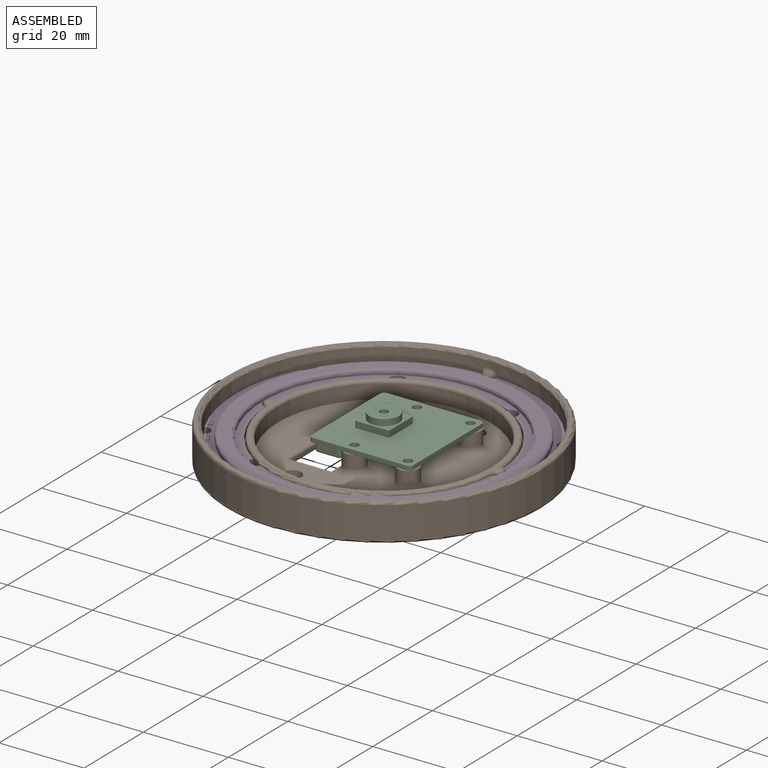
[diagram: assembled view]
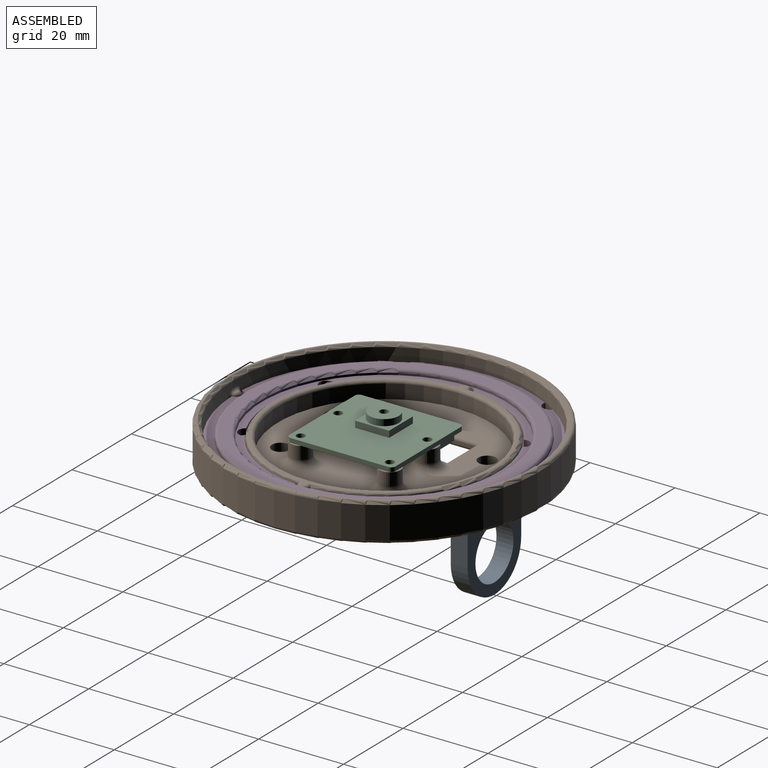
[diagram: assembled view, second angle]
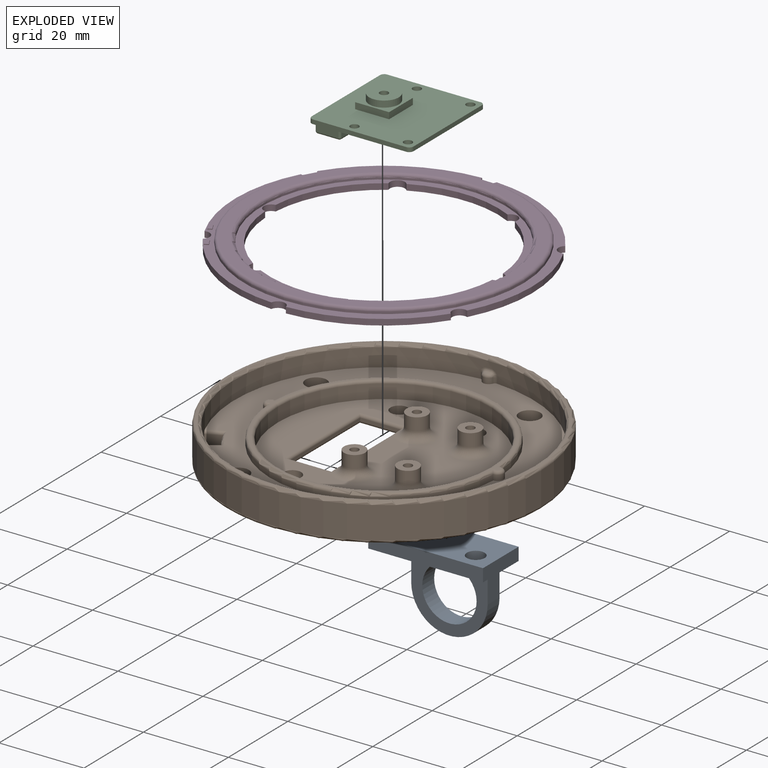
[diagram: exploded view]
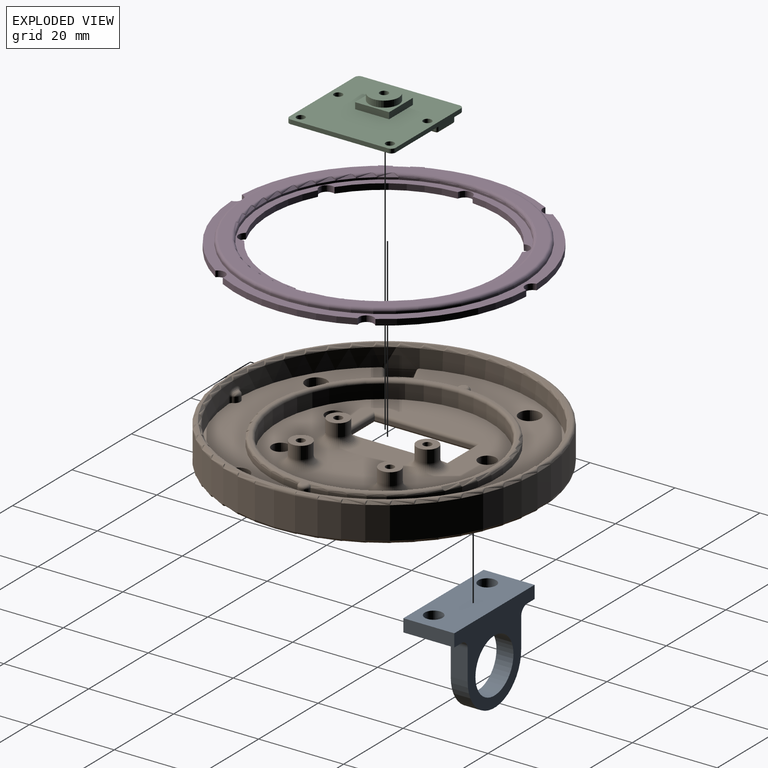
[diagram: exploded view, second angle]
ASSEMBLY  parts=4 mates=8
PART A: 16 faces, bbox 27x21x12 mm
  f0: plane 12x3.02mm, normal (1,0,0), area 36.2mm2, adj f1,f6,f8,f10
  f1: plane 27x12mm, normal (0,1,0), area 296.3mm2, adj f0,f2,f8,f10,f11,f12
  f2: plane 12x3.02mm, normal (-1,0,0), area 36.2mm2, adj f1,f6,f8,f10
  f3: plane 7x4mm, normal (-1,0,0), area 28mm2, adj f4,f8,f9,f13
  f4: cylinder r=9mm len=18mm, axis (0,0,-1), area 113.1mm2, adj f3,f5,f8,f9
  f5: plane 7x4mm, normal (1,0,0), area 28mm2, adj f4,f8,f9,f14
  f6: plane 27x12mm, normal (0,-1,0), area 164.5mm2, adj f0,f2,f8,f10,f11,f12,f13,f14
  f7: cylinder r=6.4mm len=12.8mm, axis (0,0,-1), area 160.8mm2, adj f8,f9
  f8: plane 27x21.02mm, normal (0,0,1), area 243.8mm2, adj f0,f1,f2,f3,f4,f5,f6,f7
  f9: plane 18x16mm, normal (0,0,-1), area 124.6mm2, adj f3,f4,f5,f7,f15
  f10: plane 27x3.02mm, normal (0,0,-1), area 81.5mm2, adj f0,f1,f2,f6
  f11: cylinder r=2.1mm len=4.2mm, axis (0,-1,0), area 39.8mm2, adj f1,f6,f15
  f12: cylinder r=2.1mm len=4.2mm, axis (0,-1,0), area 39.8mm2, adj f1,f6,f15
  f13: cylinder r=2mm len=6mm, axis (0,0,1), area 14.8mm2, adj f3,f6,f8,f15
  f14: cylinder r=2mm len=6mm, axis (0,0,-1), area 14.8mm2, adj f5,f6,f8,f15
  f15: cylinder r=2mm len=22mm, axis (1,0,0), area 60.9mm2, adj f6,f9,f11,f12,f13,f14
PART B: 90 faces, bbox 80.1x80.1x9 mm
  f0: plane 52.1x52.1mm, normal (0,0,1), area 56.9mm2, adj f71,f74,f86
  f1: plane 1.4x1.4mm, normal (0,0,1), area 1.5mm2, adj f73
  f2: plane 70.5x70.39mm, normal (0,0,1), area 1532.8mm2, adj f3,f4,f8,f45,f46,f47,f48,f49
  f3: cylinder r=26.75mm len=53.43mm, axis (0,0,-1), area 105.6mm2, adj f2,f45,f46,f71
  f4: cylinder r=26.75mm len=53.43mm, axis (0,0,-1), area 105.6mm2, adj f2,f45,f46,f74
  f5: plane 50x50mm, normal (0,0,1), area 1369.6mm2, adj f10,f19,f20,f21,f22,f39,f41,f42
  f6: plane 72.6x72.6mm, normal (0,0,-1), area 3679.1mm2, adj f19,f20,f21,f22,f49,f50,f51,f52
  f7: cylinder r=37mm len=74mm, axis (0,0,1), area 1766.8mm2, adj f88,f89
  f8: cylinder r=35.25mm len=70.5mm, axis (0,0,-1), area 953.3mm2, adj f2,f13,f14,f53,f54,f56,f57,f58
  f9: plane 72.6x72.6mm, normal (0,0,1), area 79.4mm2, adj f87,f88
  f10: cylinder r=25mm len=50mm, axis (0,0,-1), area 518.4mm2, adj f5,f86
  f11: plane 1.4x1.4mm, normal (0,0,1), area 1.5mm2, adj f72
  f12: cylinder r=31.5mm len=4.73mm, axis (0,0,1), area 14.2mm2, adj f13,f14,f76,f85
  f13: plane 3.4x2.6mm, normal (0.42,-0.91,0), area 9.8mm2, adj f8,f12,f75,f83
  f14: plane 3.08x2.6mm, normal (-0.57,0.82,0), area 9.8mm2, adj f8,f12,f77,f84
  f15: plane 10x0.6mm, normal (0,-1,0), area 6mm2, adj f16,f18,f63,f81
  f16: plane 24x0.6mm, normal (1,0,0), area 14.4mm2, adj f15,f17,f65,f79
  f17: plane 10x0.6mm, normal (0,1,0), area 6mm2, adj f16,f18,f67,f78
  f18: plane 24x0.72mm, normal (-1,0,0), area 15mm2, adj f15,f17,f61,f62,f63,f64,f66,f67
  f19: cylinder r=2.1mm len=4.2mm, axis (0,0,1), area 26.4mm2, adj f5,f6
  f20: cylinder r=2.1mm len=4.2mm, axis (0,0,1), area 26.4mm2, adj f5,f6
  f21: cylinder r=2.1mm len=4.2mm, axis (0,0,1), area 26.4mm2, adj f5,f6
  f22: cylinder r=2.1mm len=4.2mm, axis (0,0,1), area 26.4mm2, adj f5,f6
  f23: cylinder r=1mm len=5mm, axis (0,0,-1), area 31.4mm2, adj f25,f26
  f24: cylinder r=2.5mm len=5mm, axis (0,0,-1), area 47.1mm2, adj f25,f42
  f25: plane 5x5mm, normal (0,0,1), area 16.5mm2, adj f23,f24
  f26: plane 2x2mm, normal (0,0,1), area 3.1mm2, adj f23
  f27: cylinder r=1mm len=5mm, axis (0,0,-1), area 31.4mm2, adj f29,f30
  f28: cylinder r=2.5mm len=5mm, axis (0,0,-1), area 47.1mm2, adj f29,f43,f44
  f29: plane 5x5mm, normal (0,0,1), area 16.5mm2, adj f27,f28
  f30: plane 2x2mm, normal (0,0,1), area 3.1mm2, adj f27
  f31: cylinder r=1mm len=5mm, axis (0,0,-1), area 31.4mm2, adj f33,f34
  f32: cylinder r=2.5mm len=5mm, axis (0,0,-1), area 47.1mm2, adj f33,f41
  f33: plane 5x5mm, normal (0,0,1), area 16.5mm2, adj f31,f32
  f34: plane 2x2mm, normal (0,0,1), area 3.1mm2, adj f31
  f35: cylinder r=1mm len=5mm, axis (0,0,-1), area 31.4mm2, adj f37,f38
  f36: cylinder r=2.5mm len=5mm, axis (0,0,-1), area 47.1mm2, adj f37,f39,f40
  f37: plane 5x5mm, normal (0,0,1), area 16.5mm2, adj f35,f36
  f38: plane 2x2mm, normal (0,0,1), area 3.1mm2, adj f35
  f39: torus R=4.5mm, axis (0,0,1), area 58.5mm2, adj f5,f36,f40,f68,f69
  f40: bspline ~2.83x2.21mm, area 3.2mm2, adj f36,f39,f70
  f41: torus R=4.5mm, axis (0,0,1), area 63.7mm2, adj f5,f32
  f42: torus R=4.5mm, axis (0,0,1), area 63.7mm2, adj f5,f24
  f43: torus R=4.5mm, axis (0,0,1), area 58.5mm2, adj f5,f28,f44,f61,f64
  f44: bspline ~2.83x2.21mm, area 3.2mm2, adj f28,f43,f62
  f45: cylinder r=1.4mm len=2.8mm, axis (0,0,-1), area 5.8mm2, adj f2,f3,f4,f73
  f46: cylinder r=1.4mm len=2.8mm, axis (0,0,-1), area 5.8mm2, adj f2,f3,f4,f72
  f47: cylinder r=1.4mm len=2.61mm, axis (0,0,-1), area 4.4mm2, adj f2,f53,f55,f56
  f48: cylinder r=1.4mm len=2.61mm, axis (0,0,-1), area 4.4mm2, adj f2,f57,f59,f60
  f49: cylinder r=2.5mm len=5mm, axis (0,0,1), area 62.8mm2, adj f2,f6
  f50: cylinder r=2.5mm len=5mm, axis (0,0,1), area 62.8mm2, adj f2,f6
  f51: cylinder r=2.5mm len=5mm, axis (0,0,1), area 62.8mm2, adj f2,f6
  f52: cylinder r=2.5mm len=5mm, axis (0,0,1), area 62.8mm2, adj f2,f6
  f53: cylinder r=0.7mm len=1.3mm, axis (0,0,-1), area 1.1mm2, adj f2,f8,f47,f54
  f54: bspline ~4x1.7mm, area 4.1mm2, adj f8,f53,f55,f56
  f55: torus R=0.7mm, axis (0,0,1), area 1.7mm2, adj f47,f54
  f56: cylinder r=0.7mm len=1.3mm, axis (0,0,-1), area 1.1mm2, adj f2,f8,f47,f54
  f57: cylinder r=0.7mm len=1.3mm, axis (0,0,-1), area 1.1mm2, adj f2,f8,f48,f58
  f58: bspline ~4x1.7mm, area 4.1mm2, adj f8,f57,f59,f60
  f59: torus R=0.7mm, axis (0,0,1), area 1.7mm2, adj f48,f58
  f60: cylinder r=0.7mm len=1.3mm, axis (0,0,-1), area 1.1mm2, adj f2,f8,f48,f58
  f61: bspline ~2.77x0.79mm, area 1mm2, adj f5,f18,f43,f62,f63
  f62: bspline ~2.62x0.73mm, area 1.5mm2, adj f18,f44,f61,f64
  f63: cylinder r=0.7mm len=11.3mm, axis (1,0,0), area 11.5mm2, adj f5,f15,f18,f61,f65
  f64: bspline ~2.59x0.79mm, area 1.7mm2, adj f18,f43,f62,f66
  f65: cylinder r=0.7mm len=25.4mm, axis (0,1,0), area 27.2mm2, adj f5,f16,f63,f67
  f66: cylinder r=0.7mm len=15.88mm, axis (0,-1,0), area 17.5mm2, adj f5,f18,f64,f68
  f67: cylinder r=0.7mm len=11.3mm, axis (-1,0,0), area 11.5mm2, adj f5,f17,f18,f65,f69
  f68: bspline ~3.49x0.91mm, area 1.7mm2, adj f18,f39,f66,f70
  f69: bspline ~2.77x0.79mm, area 1mm2, adj f5,f18,f39,f67,f70
  f70: bspline ~2.62x0.73mm, area 1.5mm2, adj f18,f40,f68,f69
  f71: torus R=26.05mm, axis (0,0,1), area 90mm2, adj f0,f3,f72,f73
  f72: torus R=0.7mm, axis (0,0,1), area 5.8mm2, adj f11,f46,f71,f74
  f73: torus R=0.7mm, axis (0,0,1), area 5.8mm2, adj f1,f45,f71,f74
  f74: torus R=26.05mm, axis (0,0,1), area 90mm2, adj f0,f4,f72,f73
  f75: cylinder r=0.7mm len=4.34mm, axis (0.91,0.42,0), area 4.5mm2, adj f2,f8,f13,f76
  f76: torus R=30.8mm, axis (0,0,1), area 6.7mm2, adj f2,f12,f75,f77
  f77: cylinder r=0.7mm len=4.06mm, axis (-0.82,-0.57,0), area 4.5mm2, adj f2,f8,f14,f76
  f78: cylinder r=0.7mm len=11.4mm, axis (1,0,0), area 11.8mm2, adj f6,f17,f79,f80
  f79: cylinder r=0.7mm len=25.4mm, axis (0,-1,0), area 27.2mm2, adj f6,f16,f78,f81
  f80: cylinder r=0.7mm len=25.4mm, axis (0,1,0), area 27.2mm2, adj f6,f18,f78,f81
  f81: cylinder r=0.7mm len=11.4mm, axis (-1,0,0), area 11.8mm2, adj f6,f15,f79,f80
  f82: torus R=35.95mm, axis (0,0,1), area 7.5mm2, adj f6,f8,f83,f84
  f83: cylinder r=0.7mm len=4.97mm, axis (-0.91,-0.42,0), area 4.9mm2, adj f6,f13,f82,f85
  f84: cylinder r=0.7mm len=4.63mm, axis (0.82,0.57,0), area 4.9mm2, adj f6,f14,f82,f85
  f85: torus R=30.8mm, axis (0,0,1), area 6.7mm2, adj f6,f12,f83,f84
  f86: torus R=25.7mm, axis (0,0,1), area 174.5mm2, adj f0,f10
  f87: torus R=35.95mm, axis (0,0,1), area 245.3mm2, adj f8,f9
  f88: torus R=36.3mm, axis (0,0,1), area 253.9mm2, adj f7,f9
  f89: torus R=36.3mm, axis (0,0,1), area 253.9mm2, adj f6,f7
PART C: 48 faces, bbox 24x25x7 mm
  f0: cylinder r=1mm len=2mm, axis (0,0,-1), area 9.4mm2, adj f2,f47
  f1: cylinder r=3.5mm len=7mm, axis (0,0,-1), area 33mm2, adj f2,f3
  f2: plane 7x7mm, normal (0,0,1), area 35.3mm2, adj f0,f1
  f3: plane 8x8mm, normal (0,0,1), area 25.5mm2, adj f1,f4,f5,f6,f7
  f4: plane 8x1.5mm, normal (1,0,0), area 12mm2, adj f3,f5,f7,f20
  f5: plane 8x1.5mm, normal (0,-1,0), area 12mm2, adj f3,f4,f6,f20
  f6: plane 8x1.5mm, normal (-1,0,0), area 12mm2, adj f3,f5,f7,f20
  f7: plane 8x1.5mm, normal (0,1,0), area 12mm2, adj f3,f4,f6,f20
  f8: cylinder r=1mm len=1mm, axis (0,0,-1), area 1.6mm2, adj f12,f19,f20,f21
  f9: cylinder r=1mm len=1mm, axis (0,0,1), area 1.6mm2, adj f12,f17,f20,f21
  f10: cylinder r=1mm len=1mm, axis (0,0,-1), area 1.6mm2, adj f17,f18,f20,f21
  f11: cylinder r=1mm len=1mm, axis (0,0,1), area 1.6mm2, adj f18,f19,f20,f21
  f12: plane 23x1mm, normal (-1,0,0), area 23mm2, adj f8,f9,f20,f21
  f13: cylinder r=1mm len=2mm, axis (0,0,-1), area 6.3mm2, adj f20,f21
  f14: cylinder r=1mm len=2mm, axis (0,0,-1), area 6.3mm2, adj f20,f21
  f15: cylinder r=1mm len=2mm, axis (0,0,-1), area 6.3mm2, adj f20,f21
  f16: cylinder r=1mm len=2mm, axis (0,0,-1), area 6.3mm2, adj f20,f21
  f17: plane 22x1mm, normal (0,1,0), area 22mm2, adj f9,f10,f20,f21
  f18: plane 23x1mm, normal (1,0,0), area 23mm2, adj f10,f11,f20,f21
  f19: plane 22x1mm, normal (0,-1,0), area 22mm2, adj f8,f11,f20,f21
  f20: plane 25x24mm, normal (0,0,1), area 522.6mm2, adj f4,f5,f6,f7,f8,f9,f10,f11
  f21: plane 25x24mm, normal (0,0,-1), area 486.6mm2, adj f8,f9,f10,f11,f12,f13,f14,f15
  f22: cylinder r=0.5mm len=2mm, axis (0,0,-1), area 1.6mm2, adj f23,f24,f45,f46
  f23: sphere r=0.5mm, area 0.4mm2, adj f22,f25,f26
  f24: sphere r=0.5mm, area 0.4mm2, adj f22,f27,f28
  f25: cylinder r=0.5mm len=5mm, axis (-1,0,0), area 3.9mm2, adj f21,f23,f29,f46
  f26: cylinder r=0.5mm len=20mm, axis (0,1,0), area 15.7mm2, adj f21,f23,f30,f45
  f27: cylinder r=0.5mm len=20mm, axis (0,-1,0), area 15.7mm2, adj f24,f31,f42,f45
  f28: cylinder r=0.5mm len=5mm, axis (1,0,0), area 3.9mm2, adj f24,f32,f42,f46
  f29: sphere r=0.5mm, area 0.4mm2, adj f25,f33,f34
  f30: sphere r=0.5mm, area 0.4mm2, adj f26,f35,f36
  f31: sphere r=0.5mm, area 0.4mm2, adj f27,f36,f37
  f32: sphere r=0.5mm, area 0.4mm2, adj f28,f33,f38
  f33: cylinder r=0.5mm len=2mm, axis (0,0,1), area 1.6mm2, adj f29,f32,f43,f46
  f34: cylinder r=0.5mm len=20mm, axis (0,-1,0), area 15.7mm2, adj f21,f29,f39,f43
  f35: cylinder r=0.5mm len=5mm, axis (1,0,0), area 3.9mm2, adj f21,f30,f39,f44
  f36: cylinder r=0.5mm len=2mm, axis (0,0,1), area 1.6mm2, adj f30,f31,f44,f45
  f37: cylinder r=0.5mm len=5mm, axis (-1,0,0), area 3.9mm2, adj f31,f40,f42,f44
  f38: cylinder r=0.5mm len=20mm, axis (0,1,0), area 15.7mm2, adj f32,f40,f42,f43
  f39: sphere r=0.5mm, area 0.4mm2, adj f34,f35,f41
  f40: sphere r=0.5mm, area 0.4mm2, adj f37,f38,f41
  f41: cylinder r=0.5mm len=2mm, axis (0,0,-1), area 1.6mm2, adj f39,f40,f43,f44
  f42: plane 20x5mm, normal (0,0,-1), area 100mm2, adj f27,f28,f37,f38
  f43: plane 20x2mm, normal (1,0,0), area 40mm2, adj f33,f34,f38,f41
  f44: plane 5x2mm, normal (0,1,0), area 10mm2, adj f35,f36,f37,f41
  f45: plane 20x2mm, normal (-1,0,0), area 40mm2, adj f22,f26,f27,f36
  f46: plane 5x2mm, normal (0,-1,0), area 10mm2, adj f22,f25,f28,f33
  f47: plane 2x2mm, normal (0,0,1), area 3.1mm2, adj f0
PART D: 42 faces, bbox 70.9x70.9x2.6 mm
  f0: cylinder r=28.75mm len=57.5mm, axis (0,0,-1), area 90.3mm2, adj f3,f5
  f1: cylinder r=32.75mm len=65.5mm, axis (0,0,-1), area 102.9mm2, adj f4,f6
  f2: plane 64.1x64.1mm, normal (0,0,1), area 502.3mm2, adj f3,f4
  f3: torus R=29.45mm, axis (0,0,1), area 200.4mm2, adj f0,f2
  f4: torus R=32.05mm, axis (0,0,1), area 224.5mm2, adj f1,f2
  f5: plane 57.5x57.5mm, normal (0,0,1), area 282.5mm2, adj f0,f18,f19,f20,f21,f22,f23,f24
  f6: plane 70x69.92mm, normal (0,0,1), area 451.6mm2, adj f1,f7,f8,f9,f10,f11,f12,f13
  f7: cylinder r=1.75mm len=3.1mm, axis (0,0,-1), area 6.9mm2, adj f6,f8,f30,f31
  f8: cylinder r=35mm len=31.97mm, axis (0,0,-1), area 46.5mm2, adj f6,f7,f9,f31
  f9: cylinder r=1.75mm len=3.1mm, axis (0,0,-1), area 6.9mm2, adj f6,f8,f10,f31
  f10: cylinder r=35mm len=27.69mm, axis (0,0,-1), area 46.5mm2, adj f6,f9,f11,f31
  f11: cylinder r=1.75mm len=3.45mm, axis (0,0,-1), area 6.9mm2, adj f6,f10,f12,f31
  f12: cylinder r=35mm len=27.69mm, axis (0,0,-1), area 46.5mm2, adj f6,f11,f13,f31
  f13: cylinder r=1.75mm len=3.1mm, axis (0,0,-1), area 6.9mm2, adj f6,f12,f14,f31
  f14: cylinder r=35mm len=31.97mm, axis (0,0,-1), area 46.5mm2, adj f6,f13,f15,f31
  f15: cylinder r=1.75mm len=3.1mm, axis (0,0,-1), area 6.9mm2, adj f6,f14,f16,f31
  f16: cylinder r=35mm len=27.69mm, axis (0,0,-1), area 46.5mm2, adj f6,f15,f17,f31
  f17: cylinder r=1.75mm len=3.45mm, axis (0,0,-1), area 6.9mm2, adj f6,f16,f30,f31
  f18: cylinder r=27mm len=23.93mm, axis (0,0,-1), area 34.7mm2, adj f5,f19,f29,f31
  f19: cylinder r=1.75mm len=3.16mm, axis (0,0,-1), area 7.2mm2, adj f5,f18,f20,f31
  f20: cylinder r=27mm len=20.73mm, axis (0,0,-1), area 34.7mm2, adj f5,f19,f21,f31
  f21: cylinder r=1.75mm len=3.48mm, axis (0,0,-1), area 7.2mm2, adj f5,f20,f22,f31
  f22: cylinder r=27mm len=20.73mm, axis (0,0,-1), area 34.7mm2, adj f5,f21,f23,f31
  f23: cylinder r=1.75mm len=3.16mm, axis (0,0,-1), area 7.2mm2, adj f5,f22,f24,f31
  f24: cylinder r=27mm len=23.93mm, axis (0,0,-1), area 34.7mm2, adj f5,f23,f25,f31
  f25: cylinder r=1.75mm len=3.16mm, axis (0,0,-1), area 7.2mm2, adj f5,f24,f26,f31
  f26: cylinder r=27mm len=20.73mm, axis (0,0,-1), area 34.7mm2, adj f5,f25,f27,f31
  f27: cylinder r=1.75mm len=3.48mm, axis (0,0,-1), area 7.2mm2, adj f5,f26,f28,f31
  f28: cylinder r=27mm len=20.73mm, axis (0,0,-1), area 34.7mm2, adj f5,f27,f29,f31
  f29: cylinder r=1.75mm len=3.16mm, axis (0,0,-1), area 7.2mm2, adj f5,f18,f28,f31
  f30: cylinder r=35mm len=27.69mm, axis (0,0,-1), area 46.5mm2, adj f6,f7,f17,f31
  f31: plane 70x69.92mm, normal (0,0,-1), area 1510.9mm2, adj f7,f8,f9,f10,f11,f12,f13,f14
  f32: plane 1x0.2mm, normal (1,0,0), area 0.2mm2, adj f6,f33,f35,f36
  f33: plane 2x0.2mm, normal (0,1,0), area 0.4mm2, adj f6,f32,f34,f36
  f34: plane 1x0.2mm, normal (-1,0,0), area 0.2mm2, adj f6,f33,f35,f36
  f35: plane 2x0.2mm, normal (0,-1,0), area 0.4mm2, adj f6,f32,f34,f36
  f36: plane 2x1mm, normal (0,0,1), area 2mm2, adj f32,f33,f34,f35
  f37: plane 2x0.2mm, normal (0,1,0), area 0.4mm2, adj f6,f38,f40,f41
  f38: plane 1x0.2mm, normal (-1,0,0), area 0.2mm2, adj f6,f37,f39,f41
  f39: plane 2x0.2mm, normal (0,-1,0), area 0.4mm2, adj f6,f38,f40,f41
  f40: plane 1x0.2mm, normal (1,0,0), area 0.2mm2, adj f6,f37,f39,f41
  f41: plane 2x1mm, normal (0,0,1), area 2mm2, adj f37,f38,f39,f40
PLACE A rot(axis=(0,-0.71,-0.71),180deg) t=(-21.42,7.09,-74.07)mm
PLACE B t=(-34.92,-14.91,-72.07)mm fixed
PLACE C t=(-19.92,-27.41,-67.07)mm
PLACE D rot(axis=(0,0,-1),60.6deg) t=(-34.92,-14.91,-70.07)mm
MATE cylindrical B.f8 <-> D.f8  axis (0,0,-1) through (-34.92,-14.91,-69.57)mm
MATE planar C.f21 <-> B.f27  axis (0,0,-1) through (-31.92,-2.41,-67.07)mm
MATE cylindrical A.f12 <-> B.f22  axis (0,0,-1) through (-25.92,3.09,-77.11)mm
MATE cylindrical C.f15 <-> B.f27  axis (0,0,-1) through (-34.52,-4.41,-66.07)mm
MATE cylindrical B.f23 <-> C.f16  axis (0,0,-1) through (-21.92,-4.41,-67.07)mm
MATE planar B.f51 <-> A.f1  axis (0,0,-1) through (-19.42,11.94,-74.07)mm
MATE cylindrical A.f11 <-> B.f21  axis (0,0,-1) through (-43.92,3.09,-77.11)mm
MATE planar B.f2 <-> D.f31  axis (0,0,1) through (-34.33,-14.57,-70.07)mm
